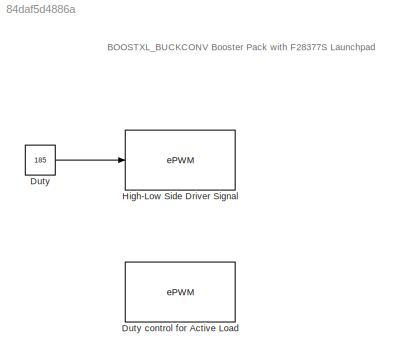
MODEL slx_84daf5d4886a
KIND model
CONFIG AbsTol = auto
CONFIG EnableMultiTasking = on
CONFIG FixedStep = auto
CONFIG MaxStep = auto
CONFIG MinStep = auto
CONFIG RelTol = 1e-3
CONFIG SampleTimeConstraint = Unconstrained
CONFIG Solver = FixedStepDiscrete
CONFIG SolverName = FixedStepDiscrete
CONFIG StartTime = 0.0
CONFIG StopTime = 10.0
BLOCK [Constant] Duty
  OutDataTypeStr = uint16
  Value = 185
BLOCK [Reference] Duty control for Active Load   REF=c2802xlib/ePWM
  Ports = []
  SourceBlock = c2802xlib/ePWM
  SourceType = C2802x/03x/05x/06x/M3x/37x/07x ePWM
  UserDataPersistent = on
BLOCK [Reference] High-Low Side Driver Signal  REF=c2802xlib/ePWM
  Ports = [1]
  SourceBlock = c2802xlib/ePWM
  SourceType = C2802x/03x/05x/06x/M3x/37x/07x ePWM
  UserDataPersistent = on
ANNOTATION (root): BOOSTXL_BUCKCONV Booster Pack with F28377S Launchpad
LINE Duty:1 -> High-Low Side Driver Signal:1
